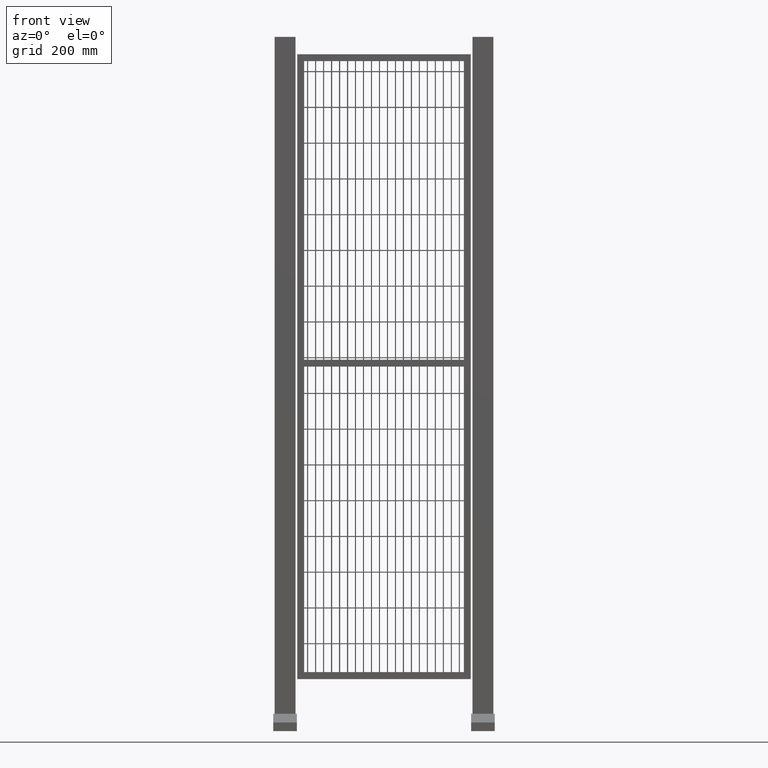
[diagram: clean part render]
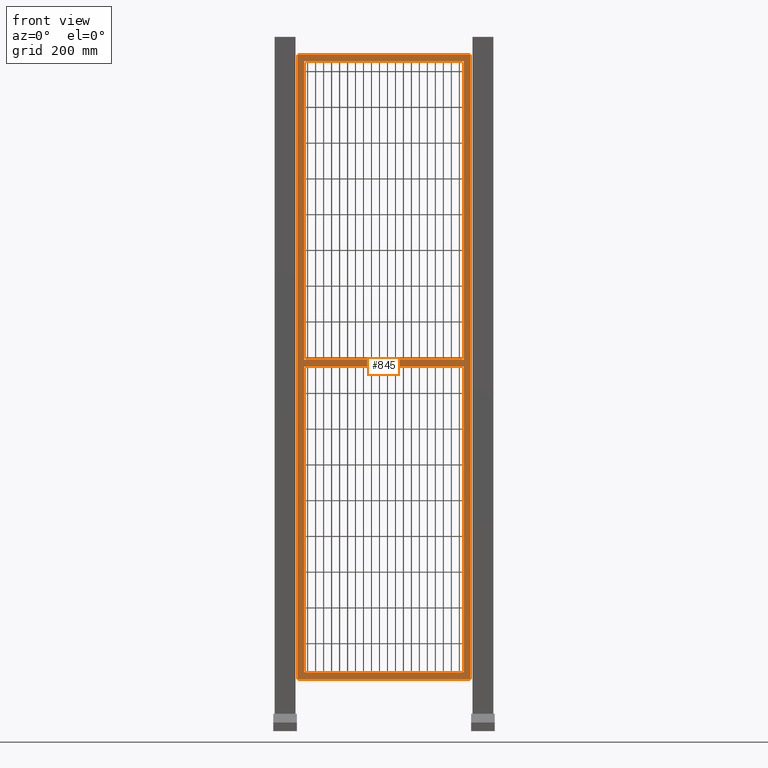
[diagram: same view with one face highlighted and labeled with its STEP entity id]
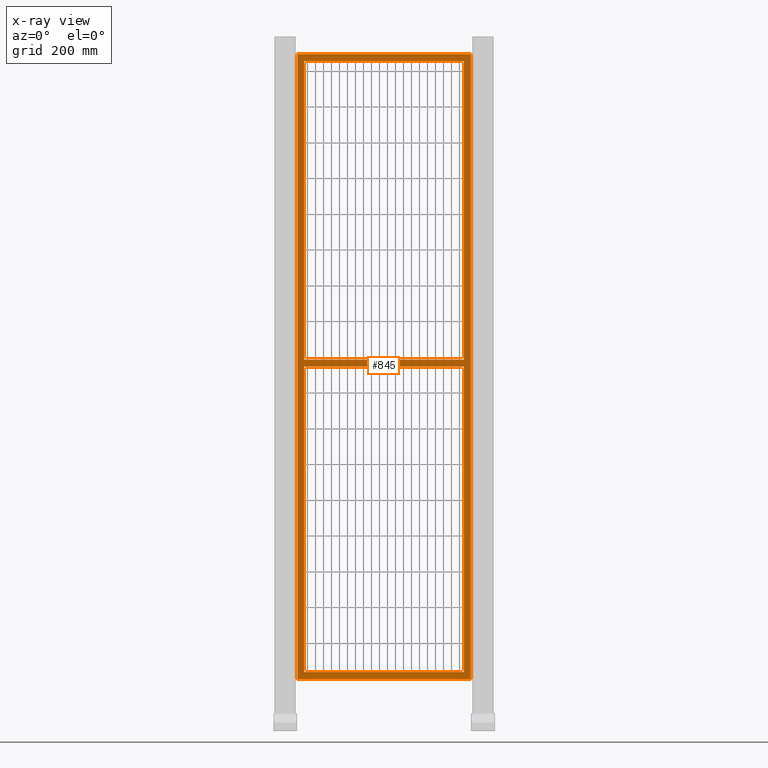
[diagram: x-ray of the same camera — body ghosted, the highlighted face saturated]
A machine part, front view. The second image highlights one B-rep face of the part: STEP entity #845.
The next image is the same camera in x-ray: the body ghosted, the highlighted face saturated — about 0% of this face is hidden behind the body in this view.
In plain terms, the highlighted planar face has unit normal (0, -1, 0).
Its self-contained STEP definition (entity closure, byte-faithful):
#58=LINE('',#2950,#152);
#62=LINE('',#2959,#156);
#68=LINE('',#2984,#162);
#71=LINE('',#2992,#165);
#73=LINE('',#2997,#167);
#76=LINE('',#3003,#170);
#80=LINE('',#3011,#174);
#84=LINE('',#3019,#178);
#87=LINE('',#3025,#181);
#89=LINE('',#3028,#183);
#90=LINE('',#3030,#184);
#91=LINE('',#3031,#185);
#152=VECTOR('',#2386,1.);
#156=VECTOR('',#2392,1.);
#162=VECTOR('',#2414,1.);
#165=VECTOR('',#2421,1.);
#167=VECTOR('',#2425,1.);
#170=VECTOR('',#2430,1.);
#174=VECTOR('',#2436,1.);
#178=VECTOR('',#2442,1.);
#181=VECTOR('',#2447,1.);
#183=VECTOR('',#2451,1.);
#184=VECTOR('',#2454,1.);
#185=VECTOR('',#2455,1.);
#621=PLANE('',#2135);
#845=ADVANCED_FACE('',(#1034,#1035,#1036),#621,.T.);
#1034=FACE_BOUND('',#1151,.T.);
#1035=FACE_BOUND('',#1152,.T.);
#1036=FACE_BOUND('',#1153,.T.);
#1151=EDGE_LOOP('',(#1387,#1388,#1389,#1390));
#1152=EDGE_LOOP('',(#1391,#1392,#1393,#1394));
#1153=EDGE_LOOP('',(#1395,#1396,#1397,#1398));
#1387=ORIENTED_EDGE('',*,*,#1873,.F.);
#1388=ORIENTED_EDGE('',*,*,#1835,.F.);
#1389=ORIENTED_EDGE('',*,*,#1850,.F.);
#1390=ORIENTED_EDGE('',*,*,#1859,.F.);
#1391=ORIENTED_EDGE('',*,*,#1863,.T.);
#1392=ORIENTED_EDGE('',*,*,#1867,.T.);
#1393=ORIENTED_EDGE('',*,*,#1870,.T.);
#1394=ORIENTED_EDGE('',*,*,#1872,.T.);
#1395=ORIENTED_EDGE('',*,*,#1856,.F.);
#1396=ORIENTED_EDGE('',*,*,#1874,.F.);
#1397=ORIENTED_EDGE('',*,*,#1839,.F.);
#1398=ORIENTED_EDGE('',*,*,#1854,.F.);
#1689=VERTEX_POINT('',#2951);
#1690=VERTEX_POINT('',#2952);
#1693=VERTEX_POINT('',#2960);
#1694=VERTEX_POINT('',#2961);
#1703=VERTEX_POINT('',#2983);
#1706=VERTEX_POINT('',#2991);
#1707=VERTEX_POINT('',#2995);
#1709=VERTEX_POINT('',#3001);
#1713=VERTEX_POINT('',#3010);
#1714=VERTEX_POINT('',#3012);
#1716=VERTEX_POINT('',#3018);
#1718=VERTEX_POINT('',#3024);
#1835=EDGE_CURVE('',#1689,#1690,#58,.T.);
#1839=EDGE_CURVE('',#1693,#1694,#62,.T.);
#1850=EDGE_CURVE('',#1703,#1689,#68,.T.);
#1854=EDGE_CURVE('',#1706,#1693,#71,.T.);
#1856=EDGE_CURVE('',#1707,#1706,#73,.T.);
#1859=EDGE_CURVE('',#1709,#1703,#76,.T.);
#1863=EDGE_CURVE('',#1714,#1713,#80,.T.);
#1867=EDGE_CURVE('',#1713,#1716,#84,.T.);
#1870=EDGE_CURVE('',#1716,#1718,#87,.T.);
#1872=EDGE_CURVE('',#1718,#1714,#89,.T.);
#1873=EDGE_CURVE('',#1690,#1709,#90,.T.);
#1874=EDGE_CURVE('',#1694,#1707,#91,.T.);
#2135=AXIS2_PLACEMENT_3D('',#3032,#2456,#2457);
#2386=DIRECTION('',(-6.30808536718839E-17,0.,1.));
#2392=DIRECTION('',(-6.30808536718839E-17,0.,-1.));
#2414=DIRECTION('',(1.,0.,0.));
#2421=DIRECTION('',(-1.,0.,0.));
#2425=DIRECTION('',(-6.30808536718839E-17,0.,1.));
#2430=DIRECTION('',(-6.30808536718839E-17,0.,-1.));
#2436=DIRECTION('',(0.,0.,1.));
#2442=DIRECTION('',(-1.,0.,0.));
#2447=DIRECTION('',(0.,0.,-1.));
#2451=DIRECTION('',(1.,0.,0.));
#2454=DIRECTION('',(-1.,0.,0.));
#2455=DIRECTION('',(1.,0.,0.));
#2456=DIRECTION('',(0.,-1.,0.));
#2457=DIRECTION('',(0.,0.,-1.));
#2950=CARTESIAN_POINT('',(230.,-10.,-880.));
#2951=CARTESIAN_POINT('',(230.,-10.,-880.));
#2952=CARTESIAN_POINT('',(230.,-10.,0.));
#2959=CARTESIAN_POINT('',(-230.,-10.,880.));
#2960=CARTESIAN_POINT('',(-230.,-10.,880.));
#2961=CARTESIAN_POINT('',(-230.,-10.,20.));
#2983=CARTESIAN_POINT('',(-230.,-10.,-880.));
#2984=CARTESIAN_POINT('',(-230.,-10.,-880.));
#2991=CARTESIAN_POINT('',(230.,-10.,880.));
#2992=CARTESIAN_POINT('',(230.,-10.,880.));
#2995=CARTESIAN_POINT('',(230.,-10.,20.));
#2997=CARTESIAN_POINT('',(230.,-10.,-880.));
#3001=CARTESIAN_POINT('',(-230.,-10.,0.));
#3003=CARTESIAN_POINT('',(-230.,-10.,880.));
#3010=CARTESIAN_POINT('',(250.,-10.,900.));
#3011=CARTESIAN_POINT('',(250.,-10.,-900.));
#3012=CARTESIAN_POINT('',(250.,-10.,-900.));
#3018=CARTESIAN_POINT('',(-250.,-10.,900.));
#3019=CARTESIAN_POINT('',(250.,-10.,900.));
#3024=CARTESIAN_POINT('',(-250.,-10.,-900.));
#3025=CARTESIAN_POINT('',(-250.,-10.,900.));
#3028=CARTESIAN_POINT('',(-250.,-10.,-900.));
#3030=CARTESIAN_POINT('',(230.,-10.,0.));
#3031=CARTESIAN_POINT('',(-230.,-10.,20.));
#3032=CARTESIAN_POINT('',(0.,-10.,0.));